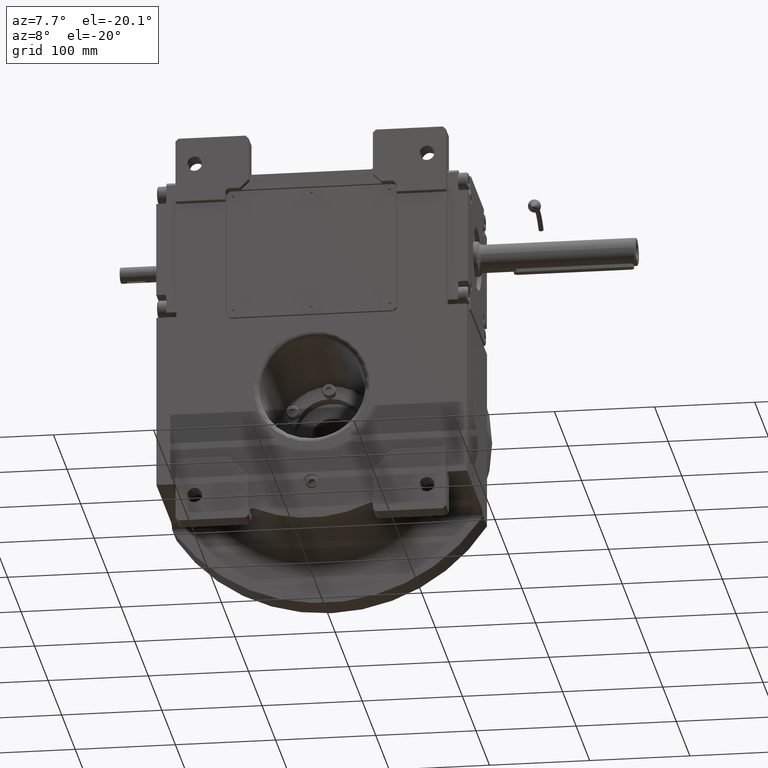
[diagram: clean part render]
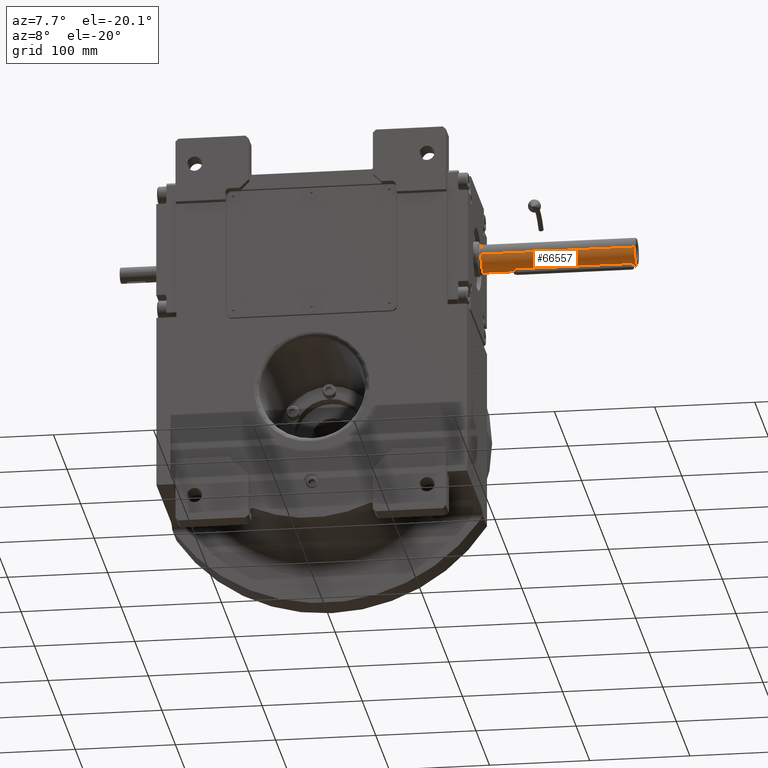
[diagram: same view with one face highlighted and labeled with its STEP entity id]
A machine part, auxiliary view. The second image highlights one B-rep face of the part: STEP entity #66557.
In plain terms, the highlighted cylindrical surface (edge-blend (fillet) strip) has radius 14 mm, axis along (-1, -0, -0).
Its self-contained STEP definition (entity closure, byte-faithful):
#1234 = CARTESIAN_POINT ( 'NONE',  ( 8.603422987298920077, -246.9996239757363128, 11.19503507964032174 ) ) ;
#1284 = CARTESIAN_POINT ( 'NONE',  ( 3.715224971185263403, -127.5175879213101808, 13.49778016092631283 ) ) ;
#2058 = CARTESIAN_POINT ( 'NONE',  ( 1.215281151927839254, -244.8115122222964999, 13.94716291165071986 ) ) ;
#2146 = CARTESIAN_POINT ( 'NONE',  ( -3.972403336761646475, -241.5374453021629222, 13.42733156200549516 ) ) ;
#2273 = CARTESIAN_POINT ( 'NONE',  ( 3.664371960193779643, -246.9996239757397518, 13.63525121404130758 ) ) ;
#2493 = CARTESIAN_POINT ( 'NONE',  ( -2.948454813095374050, -243.7034141103450793, 13.68622714788687666 ) ) ;
#2614 = CARTESIAN_POINT ( 'NONE',  ( -14.00000000000000000, -246.9999530112705202, 1.054711873393898713E-12 ) ) ;
#2831 = CARTESIAN_POINT ( 'NONE',  ( -1.912415641241238529, -244.5149780297163034, 13.86827360737135528 ) ) ;
#3017 = CARTESIAN_POINT ( 'NONE',  ( 1.541111588480336358, -125.3087964697210168, 13.91486945911322159 ) ) ;
#3387 = CARTESIAN_POINT ( 'NONE',  ( -1.907568120261910805, -125.4744880581609152, 13.87018799143613279 ) ) ;
#3669 = VERTEX_POINT ( 'NONE', #61534 ) ;
#3731 = CARTESIAN_POINT ( 'NONE',  ( -1.519842852450183690, -125.2999869902655377, 13.91721350779061339 ) ) ;
#3822 = CARTESIAN_POINT ( 'NONE',  ( 2.589743650408513176, -244.0495167641500416, 13.75819993299977817 ) ) ;
#4067 = LINE ( 'NONE', #42576, #45503 ) ;
#4069 = DIRECTION ( 'NONE',  ( 4.683861624749757595E-31, -1.000000000000000000, -9.367723249499515189E-31 ) ) ;
#4084 = CARTESIAN_POINT ( 'NONE',  ( 1.763503408464556443, -125.4092957846026337, 13.88809970821121809 ) ) ;
#4264 = CARTESIAN_POINT ( 'NONE',  ( -1.763503425090325649, -244.5907042071519868, 13.88809970842656405 ) ) ;
#4457 = CARTESIAN_POINT ( 'NONE',  ( -2.768664220749990523, -126.1127563541605525, 13.72356733609791313 ) ) ;
#6371 = CARTESIAN_POINT ( 'NONE',  ( 1.519844869232040541, -244.7000121806399306, 13.91721327980539158 ) ) ;
#6741 = CARTESIAN_POINT ( 'NONE',  ( 2.238870329827628236, -244.3172989451417152, 13.81917063108203614 ) ) ;
#6954 = CARTESIAN_POINT ( 'NONE',  ( 7.050476347792860921, -246.9996239757374781, 12.23268085098042235 ) ) ;
#7413 = CARTESIAN_POINT ( 'NONE',  ( 0.2494657583477977447, -244.9999999999999432, 14.00000001018641171 ) ) ;
#7684 = CARTESIAN_POINT ( 'NONE',  ( 3.999999999999901412, -128.9999999999999716, 13.41640786499872995 ) ) ;
#7858 = CARTESIAN_POINT ( 'NONE',  ( -3.695225241446180142, -242.5314428924414187, 13.50323915192450208 ) ) ;
#8122 = CARTESIAN_POINT ( 'NONE',  ( 3.469082816873210628, -242.9956272893865901, 13.56463250790648978 ) ) ;
#8363 = VERTEX_POINT ( 'NONE', #31013 ) ;
#8366 = CARTESIAN_POINT ( 'NONE',  ( -3.620494611220840486, -127.2987317090539250, 13.52381853104160214 ) ) ;
#8452 = CARTESIAN_POINT ( 'NONE',  ( 2.530380799311025442, -244.0988323061838230, 13.76907266886290238 ) ) ;
#8731 = CARTESIAN_POINT ( 'NONE',  ( 1.573481316374816918, -125.3224463499923758, 13.91123184192715989 ) ) ;
#8854 = CARTESIAN_POINT ( 'NONE',  ( -4.000000000000098588, -128.9999999999999716, 13.41640786499872995 ) ) ;
#9098 = CARTESIAN_POINT ( 'NONE',  ( -0.2494284053551258096, -124.9999999826649884, 14.00000380919818532 ) ) ;
#9261 = CARTESIAN_POINT ( 'NONE',  ( -1.541111647136484741, -244.6912035057888488, 13.91486945572806988 ) ) ;
#9440 = CARTESIAN_POINT ( 'NONE',  ( -3.692191464309671378, -127.4612572549592215, 13.50406829938647846 ) ) ;
#9788 = CARTESIAN_POINT ( 'NONE',  ( 1.715465017763553757, -125.3861692278131272, 13.89423485971970784 ) ) ;
#10463 = ORIENTED_EDGE ( 'NONE', *, *, #27332, .F. ) ;
#11290 = VERTEX_POINT ( 'NONE', #49658 ) ;
#12054 = CARTESIAN_POINT ( 'NONE',  ( 1.533113509807771724, -244.6945326199641499, 13.91575508887678048 ) ) ;
#12325 = CARTESIAN_POINT ( 'NONE',  ( 3.629667006749529801, -127.3106649799767069, 13.52114999156640174 ) ) ;
#12340 = EDGE_CURVE ( 'NONE', #70471, #11290, #39054, .T. ) ;
#12836 = CARTESIAN_POINT ( 'NONE',  ( -2.889904294231464998, -243.7659151843578229, 13.69860976702152477 ) ) ;
#13072 = ORIENTED_EDGE ( 'NONE', *, *, #62840, .T. ) ;
#13188 = CARTESIAN_POINT ( 'NONE',  ( -3.774799280518691624, -242.3259145773492378, 13.48156699920095036 ) ) ;
#13466 = CARTESIAN_POINT ( 'NONE',  ( 3.664420038106851685, -242.6040271613253481, 13.51170044012018323 ) ) ;
#13554 = CARTESIAN_POINT ( 'NONE',  ( -2.858120639122381235, -243.7987357821104979, 13.70524542977000237 ) ) ;
#13682 = CARTESIAN_POINT ( 'NONE',  ( -1.832546479736844258, -246.9996239757431340, 13.99962395681319371 ) ) ;
#13734 = CARTESIAN_POINT ( 'NONE',  ( -4.000000000000112799, -128.4580694482657748, 13.42129601379231651 ) ) ;
#13817 = CARTESIAN_POINT ( 'NONE',  ( 3.262688976214228376, -243.3287584929250045, 13.61660162732786361 ) ) ;
#13900 = CARTESIAN_POINT ( 'NONE',  ( -3.700274817866332722, -242.5192044031247462, 13.50186004722438327 ) ) ;
#14062 = CARTESIAN_POINT ( 'NONE',  ( -0.5056136941840660981, -125.0233970557849972, 13.99296076671847189 ) ) ;
#14249 = CARTESIAN_POINT ( 'NONE',  ( -2.349418900888812001, -244.2478117856025506, 13.80214462376505580 ) ) ;
#14428 = CARTESIAN_POINT ( 'NONE',  ( 0.4988576446940122811, -125.0000000346699380, 13.99999238160610204 ) ) ;
#14792 = CARTESIAN_POINT ( 'NONE',  ( -3.650274502842331792, -127.3641302586042343, 13.51560701084278016 ) ) ;
#15139 = CARTESIAN_POINT ( 'NONE',  ( 1.646050066962345682, -125.3542946572238321, 13.90272726330682040 ) ) ;
#15522 = EDGE_CURVE ( 'NONE', #27382, #24713, #28139, .T. ) ;
#15608 = AXIS2_PLACEMENT_3D ( 'NONE', #37371, #16976, #49109 ) ;
#15664 = CARTESIAN_POINT ( 'NONE',  ( -1.715465040708584521, -244.6138307611737730, 13.89423485946427661 ) ) ;
#16052 = ORIENTED_EDGE ( 'NONE', *, *, #54873, .F. ) ;
#16976 = DIRECTION ( 'NONE',  ( 4.683861624749757595E-31, -1.000000000000000000, -9.367723249499515189E-31 ) ) ;
#17400 = CARTESIAN_POINT ( 'NONE',  ( 6.314731158312008265E-11, -244.9999999999956231, 14.00000000000126832 ) ) ;
#17619 = DIRECTION ( 'NONE',  ( 4.683861624749757595E-31, -1.000000000000000000, -9.367723249499515189E-31 ) ) ;
#17665 = CARTESIAN_POINT ( 'NONE',  ( 3.704791842159812276, -127.4918130987178699, 13.50062679747256844 ) ) ;
#18326 = CARTESIAN_POINT ( 'NONE',  ( -3.664371940864810551, -246.9996239757442424, 13.63525121923107797 ) ) ;
#18345 = EDGE_CURVE ( 'NONE', #27382, #3669, #46659, .T. ) ;
#18880 = CARTESIAN_POINT ( 'NONE',  ( -4.000000000000112799, -241.2709031009677574, 13.41885106086311019 ) ) ;
#19018 = CARTESIAN_POINT ( 'NONE',  ( -7.050476330448685047, -246.9996239757464593, 12.23268086096652851 ) ) ;
#19425 = CARTESIAN_POINT ( 'NONE',  ( -3.526345677167521231, -127.1088562113611715, 13.54943428568206976 ) ) ;
#19595 = CARTESIAN_POINT ( 'NONE',  ( -3.331556968830593490, -243.2176095309814912, 13.59925978158145554 ) ) ;
#19757 = CARTESIAN_POINT ( 'NONE',  ( 3.537940345006858056, -127.1155282984431665, 13.54729066733074205 ) ) ;
#20035 = CARTESIAN_POINT ( 'NONE',  ( -14.00000000000000000, -246.9999530112705202, 1.054711873393898713E-12 ) ) ;
#20121 = CARTESIAN_POINT ( 'NONE',  ( -2.797024011805065324, -126.1401720605710750, 13.71784672418509921 ) ) ;
#20313 = CARTESIAN_POINT ( 'NONE',  ( -0.4989315166959487069, -244.9999999999999716, 13.99999997963478293 ) ) ;
#20501 = CARTESIAN_POINT ( 'NONE',  ( -1.706169286663492768, -125.3774263002088674, 13.89661606440622421 ) ) ;
#20839 = CARTESIAN_POINT ( 'NONE',  ( -3.692695903701001647, -127.4624653874514877, 13.50393022281754973 ) ) ;
#21874 = EDGE_CURVE ( 'NONE', #3669, #64501, #47113, .T. ) ;
#22991 = CARTESIAN_POINT ( 'NONE',  ( -4.000000000000098588, -128.9999999999999716, 13.41640786499872995 ) ) ;
#23106 = CARTESIAN_POINT ( 'NONE',  ( 2.354045663096103524, -244.2374100175207730, 13.80026897075344294 ) ) ;
#23318 = CARTESIAN_POINT ( 'NONE',  ( 13.99990596027515899, -246.9999060225405003, -3.748079069332277413E-07 ) ) ;
#23676 = CARTESIAN_POINT ( 'NONE',  ( -12.23268084597046546, -246.9996239757509784, 7.050476356457136440 ) ) ;
#24030 = CARTESIAN_POINT ( 'NONE',  ( -13.99962395290441286, -246.9996239757543890, 1.832546509503064636 ) ) ;
#24425 = B_SPLINE_CURVE_WITH_KNOTS ( 'NONE', 3,
 ( #17400, #7413, #39171, #29188, #34880, #2058, #33477, #67343, #38837, #50242, #6371, #60919, #12054, #33836, #55586, #6741, #23106, #8452, #3822, #69104, #46981, #40566, #68048, #47325, #13817, #8122, #68415, #57673, #58386, #62324, #13466, #40932, #68750, #35259, #24872, #63773, #25218, #63038, #29882 ),
 .UNSPECIFIED., .F., .F.,
 ( 4, 2, 2, 1, 1, 1, 1, 2, 2, 2, 2, 2, 2, 2, 2, 2, 2, 1, 1, 1, 2, 2, 4 ),
 ( 0.5000000000000000000, 0.5624999999998331335, 0.5937499999997496447, 0.6093749999997079003, 0.6171874999996880273, 0.6210937499996793676, 0.6230468749996749267, 0.6240234374996728173, 0.6249999999996705968, 0.6874999999996743716, 0.7187499999996763700, 0.7343749999996790345, 0.7421874999996787015, 0.7499999999996782574, 0.8124999999996616040, 0.8437499999996532773, 0.8593749999996491695, 0.8671874999996511679, 0.8710937499996520561, 0.8730468749996525002, 0.8740234374996528333, 0.8749999999996531663, 1.000000000000000000 ),
 .UNSPECIFIED. ) ;
#24598 = CARTESIAN_POINT ( 'NONE',  ( -2.976731782497456180, -243.6722236602618068, 13.68016873487748697 ) ) ;
#24713 = VERTEX_POINT ( 'NONE', #50388 ) ;
#24766 = DIRECTION ( 'NONE',  ( -4.683861624749757595E-31, 1.000000000000000000, 9.367723249499515189E-31 ) ) ;
#24784 = CARTESIAN_POINT ( 'NONE',  ( -1.215245819992124332, -125.1884764301633197, 13.94716670611019893 ) ) ;
#24872 = CARTESIAN_POINT ( 'NONE',  ( 3.692191433926296007, -242.5387428179394078, 13.50406830055838903 ) ) ;
#25084 = ORIENTED_EDGE ( 'NONE', *, *, #46933, .F. ) ;
#25136 = CARTESIAN_POINT ( 'NONE',  ( -2.708964200291217317, -126.0566701851063556, 13.73538801218286842 ) ) ;
#25218 = CARTESIAN_POINT ( 'NONE',  ( 3.888838587904637656, -242.0651397987388123, 13.45033173693825823 ) ) ;
#25288 = B_SPLINE_CURVE_WITH_KNOTS ( 'NONE', 3,
 ( #7684, #45137, #51218, #33747, #29795, #55502, #28414, #50169, #1284, #17665, #44790, #66552, #61192, #12325, #19757, #30138, #68331, #35840, #57230, #63680, #42251, #57939, #41532, #47594, #52967, #52282, #25835, #4084, #9788, #15139, #47230, #8731, #36904, #46889, #3017, #30499, #63302, #14428, #9098, #14062, #64028, #36211, #24784, #68660, #69009, #69376, #31560, #3731, #57582, #58644, #20501, #3387, #46550, #53325, #31201, #25473, #30859, #25136, #4457, #20121, #36569, #52625, #51911, #19425, #41896, #8366, #14792, #26206, #47955, #58297, #69722, #9440, #20839, #42595, #13734, #35508 ),
 .UNSPECIFIED., .F., .F.,
 ( 4, 2, 2, 1, 1, 1, 1, 2, 2, 2, 2, 2, 2, 2, 2, 2, 2, 1, 1, 1, 2, 2, 2, 2, 2, 1, 1, 1, 1, 2, 2, 2, 2, 2, 2, 2, 2, 2, 2, 1, 1, 1, 2, 2, 4 ),
 ( 0.000000000000000000, 0.06249999999990940580, 0.09374999999986088906, 0.1093749999998366168, 0.1171874999998245015, 0.1210937499998216010, 0.1230468749998232386, 0.1240234374998209488, 0.1249999999998186589, 0.1874999999998326339, 0.2187499999998396560, 0.2343749999998431810, 0.2421874999998449574, 0.2499999999998467337, 0.3124999999998505085, 0.3437499999998524514, 0.3593749999998551159, 0.3671874999998547273, 0.3710937499998527844, 0.3730468749998500089, 0.3740234374998468447, 0.3749999999998437361, 0.4999999999996262989, 0.5624999999995176081, 0.5937499999994626521, 0.6093749999994360067, 0.6171874999994226840, 0.6210937499994160227, 0.6230468749994125810, 0.6240234374994121369, 0.6249999999994115818, 0.6874999999995441424, 0.7187499999996086464, 0.7343749999996391775, 0.7421874999996544986, 0.7499999999996698197, 0.8124999999997886135, 0.8437499999998480105, 0.8593749999998813172, 0.8671874999999019673, 0.8710937499999166223, 0.8730468749999239497, 0.8740234374999231726, 0.8749999999999222844, 1.000000000000000000 ),
 .UNSPECIFIED. ) ;
#25473 = CARTESIAN_POINT ( 'NONE',  ( -2.589743718030510955, -125.9504832927665632, 13.75819991878694282 ) ) ;
#25835 = CARTESIAN_POINT ( 'NONE',  ( 1.912415638689172637, -125.4850219685677075, 13.86827360633450645 ) ) ;
#26025 = CARTESIAN_POINT ( 'NONE',  ( -1.554526258208015044, -244.6855810629742791, 13.91337212608457286 ) ) ;
#26206 = CARTESIAN_POINT ( 'NONE',  ( -3.664420039551556929, -127.3959728414354231, 13.51170044899927625 ) ) ;
#26916 = EDGE_LOOP ( 'NONE', ( #33426, #52611, #33949, #58508 ) ) ;
#27332 = EDGE_CURVE ( 'NONE', #11290, #30101, #51953, .T. ) ;
#27382 = VERTEX_POINT ( 'NONE', #41716 ) ;
#27592 = DIRECTION ( 'NONE',  ( 4.683861624749757595E-31, -1.000000000000000000, -9.367723249499515189E-31 ) ) ;
#28139 = CIRCLE ( 'NONE', #15608, 14.00000000000000000 ) ;
#28414 = CARTESIAN_POINT ( 'NONE',  ( 3.774799203429807459, -127.6740852069636389, 13.48156702297509746 ) ) ;
#29188 = CARTESIAN_POINT ( 'NONE',  ( 0.8924870594014171488, -244.9013742304421726, 13.97182022939264989 ) ) ;
#29778 = FACE_BOUND ( 'NONE', #66463, .T. ) ;
#29795 = CARTESIAN_POINT ( 'NONE',  ( 3.862051633619048019, -127.9506141482096808, 13.45787654297106251 ) ) ;
#29882 = CARTESIAN_POINT ( 'NONE',  ( 3.999999999999901412, -240.9999999999999716, 13.41640786499978510 ) ) ;
#29964 = CARTESIAN_POINT ( 'NONE',  ( -3.735662116040350700, -242.4305957375750040, 13.49221068623211472 ) ) ;
#30101 = VERTEX_POINT ( 'NONE', #42188 ) ;
#30138 = CARTESIAN_POINT ( 'NONE',  ( 3.331557028424146250, -126.7823905582685597, 13.59925976411142656 ) ) ;
#30499 = CARTESIAN_POINT ( 'NONE',  ( 1.539756636485125396, -125.3082296822549466, 13.91502037222345400 ) ) ;
#30859 = CARTESIAN_POINT ( 'NONE',  ( -2.679118352293320626, -126.0294939786966495, 13.74117985800165620 ) ) ;
#31013 = CARTESIAN_POINT ( 'NONE',  ( 3.999999999999901412, -128.9999999999999716, 13.41640786499872995 ) ) ;
#31201 = CARTESIAN_POINT ( 'NONE',  ( -2.530380855019358943, -125.9011677389729158, 13.76907265708236849 ) ) ;
#31560 = CARTESIAN_POINT ( 'NONE',  ( -1.507886900491629323, -125.2950834143426988, 13.91851913011898034 ) ) ;
#33426 = ORIENTED_EDGE ( 'NONE', *, *, #45385, .T. ) ;
#33477 = CARTESIAN_POINT ( 'NONE',  ( 1.311871597884670226, -244.7798332316535550, 13.93857688075181933 ) ) ;
#33688 = ORIENTED_EDGE ( 'NONE', *, *, #12340, .F. ) ;
#33747 = CARTESIAN_POINT ( 'NONE',  ( 3.894226584558374782, -128.0768487448502526, 13.44910831709256271 ) ) ;
#33836 = CARTESIAN_POINT ( 'NONE',  ( 1.706169253160661592, -244.6225737198328147, 13.89661606433918273 ) ) ;
#33949 = ORIENTED_EDGE ( 'NONE', *, *, #18345, .F. ) ;
#34063 = CARTESIAN_POINT ( 'NONE',  ( 11.19503508573852280, -246.9996239757340390, 8.603422979367115531 ) ) ;
#34403 = CARTESIAN_POINT ( 'NONE',  ( 1.832546499581417798, -246.9996239757408603, 13.99962395421780315 ) ) ;
#34744 = CARTESIAN_POINT ( 'NONE',  ( 12.23268085598020782, -246.9996239757329590, 7.050476339126585223 ) ) ;
#34880 = CARTESIAN_POINT ( 'NONE',  ( 1.021823203302465899, -244.8696268730951999, 13.96301404503038235 ) ) ;
#34964 = CARTESIAN_POINT ( 'NONE',  ( -3.704791870429570366, -242.5081868319050216, 13.50062679324182824 ) ) ;
#35129 = VECTOR ( 'NONE', #4069, 1000.000000000000000 ) ;
#35259 = CARTESIAN_POINT ( 'NONE',  ( 3.690146155418983831, -242.5436412783303126, 13.50462809417565602 ) ) ;
#35461 = CARTESIAN_POINT ( 'NONE',  ( 13.99962395552685734, -246.9996239757295484, 1.832546489662049360 ) ) ;
#35508 = CARTESIAN_POINT ( 'NONE',  ( -4.000000000000098588, -128.9999999999999716, 13.41640786499872995 ) ) ;
#35613 = CARTESIAN_POINT ( 'NONE',  ( 14.00000000000000000, -94.00000000000000000, 0.000000000000000000 ) ) ;
#35667 = CARTESIAN_POINT ( 'NONE',  ( -3.629666982754394589, -242.6893350832541500, 13.52115000616329255 ) ) ;
#35818 = DIRECTION ( 'NONE',  ( 1.000000000000000000, 0.000000000000000000, -8.437694987151189707E-15 ) ) ;
#35840 = CARTESIAN_POINT ( 'NONE',  ( 3.109462392088248706, -126.4826279810103671, 13.65107273351811834 ) ) ;
#36031 = CARTESIAN_POINT ( 'NONE',  ( -3.862051731989133430, -242.0493854967475045, 13.45787650116805700 ) ) ;
#36211 = CARTESIAN_POINT ( 'NONE',  ( -1.021773877389995144, -125.1303597778091472, 13.96301926548560957 ) ) ;
#36569 = CARTESIAN_POINT ( 'NONE',  ( -3.078718935014460811, -126.4218463336552816, 13.65974685659606536 ) ) ;
#36904 = CARTESIAN_POINT ( 'NONE',  ( 1.554526203033438803, -125.3144189137499467, 13.91337212914797483 ) ) ;
#37371 = CARTESIAN_POINT ( 'NONE',  ( 8.881784197001834108E-16, -94.00000000000000000, 0.000000000000000000 ) ) ;
#37952 = CARTESIAN_POINT ( 'NONE',  ( -14.00000000000000000, -94.00000000000000000, 0.000000000000000000 ) ) ;
#38245 = VERTEX_POINT ( 'NONE', #64403 ) ;
#38837 = CARTESIAN_POINT ( 'NONE',  ( 1.479973218994530715, -244.7162073327111500, 13.92152865503849846 ) ) ;
#39054 = LINE ( 'NONE', #22991, #49542 ) ;
#39171 = CARTESIAN_POINT ( 'NONE',  ( 0.5056692237086011232, -244.9765958789931517, 13.99295506880691953 ) ) ;
#40117 = FACE_OUTER_BOUND ( 'NONE', #26916, .T. ) ;
#40291 = CARTESIAN_POINT ( 'NONE',  ( -3.894226675500763069, -241.9231508709316927, 13.44910827163760025 ) ) ;
#40566 = CARTESIAN_POINT ( 'NONE',  ( 2.768664111953753615, -243.8872437500079684, 13.72356735900376101 ) ) ;
#40644 = CARTESIAN_POINT ( 'NONE',  ( -3.715225008123159700, -242.4824119863760927, 13.49778015359703254 ) ) ;
#40932 = CARTESIAN_POINT ( 'NONE',  ( 3.679707551038880808, -242.5684255784336187, 13.50749138681555905 ) ) ;
#41356 = CARTESIAN_POINT ( 'NONE',  ( -2.589949672919077628, -244.0668871687230137, 13.76055624430963320 ) ) ;
#41532 = CARTESIAN_POINT ( 'NONE',  ( 2.858120559230161728, -126.2012641364189420, 13.70524544666566591 ) ) ;
#41716 = CARTESIAN_POINT ( 'NONE',  ( 14.00000000000000000, -94.00000000000000000, -7.093409193359434539E-09 ) ) ;
#41896 = CARTESIAN_POINT ( 'NONE',  ( -3.598657609572556648, -127.2528457208614014, 13.52982407318990177 ) ) ;
#42188 = CARTESIAN_POINT ( 'NONE',  ( 6.314731158312008265E-11, -244.9999999999956231, 14.00000000000126832 ) ) ;
#42251 = CARTESIAN_POINT ( 'NONE',  ( 2.948454783981488081, -126.2965858576641267, 13.68622715416114488 ) ) ;
#42576 = CARTESIAN_POINT ( 'NONE',  ( 3.999999999999901412, -128.9999999999999716, 13.41640786499872995 ) ) ;
#42595 = CARTESIAN_POINT ( 'NONE',  ( -3.888838911673897503, -127.9348610092385599, 13.45033163542342614 ) ) ;
#42768 = CARTESIAN_POINT ( 'NONE',  ( -1.546468653749683897, -244.6889623382542140, 13.91427274363308797 ) ) ;
#44790 = CARTESIAN_POINT ( 'NONE',  ( 3.700274793501586057, -127.4807955375408852, 13.50186005009432932 ) ) ;
#45080 = CARTESIAN_POINT ( 'NONE',  ( -11.19503507353069693, -246.9996239757498131, 8.603422995226246428 ) ) ;
#45137 = CARTESIAN_POINT ( 'NONE',  ( 3.999999999999885425, -128.7290966469632849, 13.41885109093698070 ) ) ;
#45385 = EDGE_CURVE ( 'NONE', #24713, #64501, #65072, .T. ) ;
#45503 = VECTOR ( 'NONE', #27592, 1000.000000000000000 ) ;
#45744 = AXIS2_PLACEMENT_3D ( 'NONE', #56880, #24766, #35818 ) ;
#46358 = CARTESIAN_POINT ( 'NONE',  ( -3.697253322759758820, -242.5265430270879961, 13.50268516444904954 ) ) ;
#46550 = CARTESIAN_POINT ( 'NONE',  ( -2.238870341872193581, -125.6827010628136208, 13.81917062850659761 ) ) ;
#46659 = LINE ( 'NONE', #35613, #56318 ) ;
#46872 = CYLINDRICAL_SURFACE ( 'NONE', #45744, 14.00000000000000000 ) ;
#46889 = CARTESIAN_POINT ( 'NONE',  ( 1.546468596494232628, -125.3110376377429844, 13.91427274688861360 ) ) ;
#46933 = EDGE_CURVE ( 'NONE', #8363, #70471, #25288, .T. ) ;
#46981 = CARTESIAN_POINT ( 'NONE',  ( 2.708964105893986840, -243.9433299016180285, 13.73538803199942926 ) ) ;
#47055 = CARTESIAN_POINT ( 'NONE',  ( -2.018124066949574136, -244.4560364425216221, 13.85316200941182707 ) ) ;
#47113 = B_SPLINE_CURVE_WITH_KNOTS ( 'NONE', 3,
 ( #23318, #35461, #67546, #34744, #34063, #1234, #6954, #2273, #34403, #13682, #18326, #19018, #56496, #45080, #23676, #57181, #24030, #2614 ),
 .UNSPECIFIED., .F., .F.,
 ( 4, 2, 2, 2, 2, 2, 2, 2, 4 ),
 ( 0.000000000000000000, 0.1250000000000000000, 0.2500000000000000000, 0.3750000000000000000, 0.5000000000000000000, 0.6250000000000000000, 0.7500000000000000000, 0.8750000000000000000, 1.000000000000000000 ),
 .UNSPECIFIED. ) ;
#47230 = CARTESIAN_POINT ( 'NONE',  ( 1.612002516263207674, -125.3390614506708971, 13.90679588418147539 ) ) ;
#47325 = CARTESIAN_POINT ( 'NONE',  ( 3.078718985593155821, -243.5781536377054977, 13.65974684795112282 ) ) ;
#47594 = CARTESIAN_POINT ( 'NONE',  ( 2.589949635211516554, -125.9331128062472800, 13.76055625180296538 ) ) ;
#47782 = CARTESIAN_POINT ( 'NONE',  ( -1.612002557858052132, -244.6609385309534161, 13.90679588234984720 ) ) ;
#47955 = CARTESIAN_POINT ( 'NONE',  ( -3.679707567831784765, -127.4315744608209542, 13.50749139046303426 ) ) ;
#48845 = CARTESIAN_POINT ( 'NONE',  ( -1.539757233461641395, -244.6917700694381494, 13.91502030929710543 ) ) ;
#49109 = DIRECTION ( 'NONE',  ( 1.000000000000000000, 0.000000000000000000, -8.437694987151189707E-15 ) ) ;
#49542 = VECTOR ( 'NONE', #17619, 1000.000000000000000 ) ;
#49658 = CARTESIAN_POINT ( 'NONE',  ( -4.000000000000098588, -240.9999999999999716, 13.41640786499978510 ) ) ;
#50169 = CARTESIAN_POINT ( 'NONE',  ( 3.735662063503340846, -127.5694041262471501, 13.49221069945184581 ) ) ;
#50242 = CARTESIAN_POINT ( 'NONE',  ( 1.507890496254679968, -244.7049151176002226, 13.91851872811625057 ) ) ;
#50388 = CARTESIAN_POINT ( 'NONE',  ( -14.00000000000000000, -94.00000000000000000, 7.093409193359434539E-09 ) ) ;
#51218 = CARTESIAN_POINT ( 'NONE',  ( 3.972403285935012018, -128.4625543181324474, 13.42733160720270824 ) ) ;
#51721 = CARTESIAN_POINT ( 'NONE',  ( -3.537940287264060402, -242.8844718086525631, 13.54729068850600804 ) ) ;
#51911 = CARTESIAN_POINT ( 'NONE',  ( -3.469082716070158057, -127.0043725358736282, 13.56463254207320368 ) ) ;
#51953 = B_SPLINE_CURVE_WITH_KNOTS ( 'NONE', 3,
 ( #68488, #18880, #2146, #40291, #36031, #62783, #13188, #29964, #40644, #34964, #13900, #46358, #7858, #35667, #51721, #19595, #61716, #57761, #63118, #24598, #2493, #12836, #13554, #41356, #14249, #47055, #2831, #4264, #15664, #53141, #47782, #52789, #26025, #42768, #9261, #48845, #70248, #20313, #69544 ),
 .UNSPECIFIED., .F., .F.,
 ( 4, 2, 2, 1, 1, 1, 1, 2, 2, 2, 2, 2, 2, 2, 2, 2, 2, 1, 1, 1, 2, 2, 4 ),
 ( 0.000000000000000000, 0.06249999999990764332, 0.09374999999986147192, 0.1093749999998383654, 0.1171874999998236411, 0.1210937499998194222, 0.1230468749998173544, 0.1240234374998194639, 0.1249999999998215872, 0.1874999999998585298, 0.2187499999998798184, 0.2343749999998926414, 0.2421874999998971656, 0.2499999999999016898, 0.3124999999999482081, 0.3437499999999731881, 0.3593749999999856226, 0.3671874999999918954, 0.3710937499999932832, 0.3730468749999940048, 0.3740234374999943379, 0.3749999999999946709, 0.5000000000000000000 ),
 .UNSPECIFIED. ) ;
#52282 = CARTESIAN_POINT ( 'NONE',  ( 2.018124067231296337, -125.5439635577728694, 13.85316200861505465 ) ) ;
#52611 = ORIENTED_EDGE ( 'NONE', *, *, #21874, .F. ) ;
#52625 = CARTESIAN_POINT ( 'NONE',  ( -3.262688871091263820, -126.6712413614753387, 13.61660165543566947 ) ) ;
#52789 = CARTESIAN_POINT ( 'NONE',  ( -1.573481366835119744, -244.6775536284017960, 13.91123183929588158 ) ) ;
#52967 = CARTESIAN_POINT ( 'NONE',  ( 2.349418892589809627, -125.7521882089468193, 13.80214462605175640 ) ) ;
#53141 = CARTESIAN_POINT ( 'NONE',  ( -1.646050101918895558, -244.6457053269631388, 13.90272726204982767 ) ) ;
#53325 = CARTESIAN_POINT ( 'NONE',  ( -2.354045688338684439, -125.7625899995622518, 13.80026896528434399 ) ) ;
#54873 = EDGE_CURVE ( 'NONE', #30101, #38245, #24425, .T. ) ;
#55502 = CARTESIAN_POINT ( 'NONE',  ( 3.805297939099714366, -127.7655483134799397, 13.47329286566161777 ) ) ;
#55586 = CARTESIAN_POINT ( 'NONE',  ( 1.907568118896758147, -244.5255119419250320, 13.87018798927254615 ) ) ;
#56318 = VECTOR ( 'NONE', #57337, 1000.000000000000000 ) ;
#56496 = CARTESIAN_POINT ( 'NONE',  ( -8.603422971423162480, -246.9996239757475962, 11.19503509182650269 ) ) ;
#56880 = CARTESIAN_POINT ( 'NONE',  ( 4.391120273202897745E-29, -91.00000000000000000, 0.000000000000000000 ) ) ;
#57181 = CARTESIAN_POINT ( 'NONE',  ( -13.63525121142994223, -246.9996239757532521, 3.664371969855413802 ) ) ;
#57230 = CARTESIAN_POINT ( 'NONE',  ( 3.058678275992036788, -126.4209822044300466, 13.66239218363451968 ) ) ;
#57337 = DIRECTION ( 'NONE',  ( 4.683861624749757595E-31, -1.000000000000000000, -9.367723249499515189E-31 ) ) ;
#57582 = CARTESIAN_POINT ( 'NONE',  ( -1.527811179619996462, -125.3032701521782428, 13.91633965205948620 ) ) ;
#57673 = CARTESIAN_POINT ( 'NONE',  ( 3.598657658325334463, -242.7471541780051609, 13.52982404939769090 ) ) ;
#57761 = CARTESIAN_POINT ( 'NONE',  ( -3.109462371604429620, -243.5173720437355485, 13.65107273885191397 ) ) ;
#57939 = CARTESIAN_POINT ( 'NONE',  ( 2.889904243651363114, -126.2340847625621478, 13.69860977787206124 ) ) ;
#58297 = CARTESIAN_POINT ( 'NONE',  ( -3.687057848920291647, -127.4489827684759433, 13.50547401043186824 ) ) ;
#58386 = CARTESIAN_POINT ( 'NONE',  ( 3.620494645788239652, -242.7012682163460511, 13.52381851105944932 ) ) ;
#58508 = ORIENTED_EDGE ( 'NONE', *, *, #15522, .T. ) ;
#58644 = CARTESIAN_POINT ( 'NONE',  ( -1.533113623981153584, -125.3054674274151097, 13.91575508147651163 ) ) ;
#60919 = CARTESIAN_POINT ( 'NONE',  ( 1.527812136767230378, -244.6967294515777382, 13.91633954101372694 ) ) ;
#61192 = CARTESIAN_POINT ( 'NONE',  ( 3.695225221765825019, -127.4685570600754829, 13.50323915319867218 ) ) ;
#61534 = CARTESIAN_POINT ( 'NONE',  ( 13.99990596027515899, -246.9999060225405003, -3.748079069332277413E-07 ) ) ;
#61716 = CARTESIAN_POINT ( 'NONE',  ( -3.251205805608605282, -243.3352374178218440, 13.61870915753349820 ) ) ;
#62324 = CARTESIAN_POINT ( 'NONE',  ( 3.650274513793668074, -242.6358697166890011, 13.51560699802167420 ) ) ;
#62783 = CARTESIAN_POINT ( 'NONE',  ( -3.805298026890844731, -242.2344514173823029, 13.47329283494337560 ) ) ;
#62840 = EDGE_CURVE ( 'NONE', #8363, #38245, #4067, .T. ) ;
#63038 = CARTESIAN_POINT ( 'NONE',  ( 3.999999999999885425, -241.5419313936870651, 13.42129611463889560 ) ) ;
#63118 = CARTESIAN_POINT ( 'NONE',  ( -3.058678269166615227, -243.5790178028273942, 13.66239218552311030 ) ) ;
#63302 = CARTESIAN_POINT ( 'NONE',  ( 1.026345449418677891, -125.0947462915104609, 13.97181258489860767 ) ) ;
#63680 = CARTESIAN_POINT ( 'NONE',  ( 2.976731763086938543, -126.3277763179138304, 13.68016873900500485 ) ) ;
#63773 = CARTESIAN_POINT ( 'NONE',  ( 3.692695873288281749, -242.5375346855743146, 13.50393022404602483 ) ) ;
#64028 = CARTESIAN_POINT ( 'NONE',  ( -0.8924326772363111449, -125.0986133282481774, 13.97182592548327840 ) ) ;
#64403 = CARTESIAN_POINT ( 'NONE',  ( 3.999999999999901412, -240.9999999999999716, 13.41640786499978510 ) ) ;
#64501 = VERTEX_POINT ( 'NONE', #20035 ) ;
#65072 = LINE ( 'NONE', #37952, #35129 ) ;
#66463 = EDGE_LOOP ( 'NONE', ( #13072, #16052, #10463, #33688, #25084 ) ) ;
#66552 = CARTESIAN_POINT ( 'NONE',  ( 3.697253301041048434, -127.4734569203196060, 13.50268516640450223 ) ) ;
#66557 = ADVANCED_FACE ( 'NONE', ( #40117, #29778 ), #46872, .T. ) ;
#67343 = CARTESIAN_POINT ( 'NONE',  ( 1.424048174875856221, -244.7382009064090767, 13.92740403233724678 ) ) ;
#67546 = CARTESIAN_POINT ( 'NONE',  ( 13.63525121664605955, -246.9996239757307137, 3.664371950533531930 ) ) ;
#68048 = CARTESIAN_POINT ( 'NONE',  ( 2.797023866087708921, -243.8598280823933067, 13.71784675478742876 ) ) ;
#68331 = CARTESIAN_POINT ( 'NONE',  ( 3.251205857325873083, -126.6647626517835619, 13.61870914356068063 ) ) ;
#68415 = CARTESIAN_POINT ( 'NONE',  ( 3.526345762143934248, -242.8911436275411688, 13.54943425335162033 ) ) ;
#68488 = CARTESIAN_POINT ( 'NONE',  ( -4.000000000000098588, -240.9999999999999716, 13.41640786499978510 ) ) ;
#68660 = CARTESIAN_POINT ( 'NONE',  ( -1.311844858549617410, -125.2201572623269072, 13.93857978407777054 ) ) ;
#68750 = CARTESIAN_POINT ( 'NONE',  ( 3.687057824246640081, -242.5510172901405781, 13.50547400955835720 ) ) ;
#69009 = CARTESIAN_POINT ( 'NONE',  ( -1.424034047317848106, -125.2617936457660051, 13.92740558426999264 ) ) ;
#69104 = CARTESIAN_POINT ( 'NONE',  ( 2.679118264834569718, -243.9705061000518924, 13.74117987635569804 ) ) ;
#69376 = CARTESIAN_POINT ( 'NONE',  ( -1.479966012776424700, -125.2837897796879645, 13.92152945334028580 ) ) ;
#69544 = CARTESIAN_POINT ( 'NONE',  ( 6.314731158312008265E-11, -244.9999999999956231, 14.00000000000126832 ) ) ;
#69722 = CARTESIAN_POINT ( 'NONE',  ( -3.690146183512867051, -127.4563587888235503, 13.50462809382643492 ) ) ;
#70248 = CARTESIAN_POINT ( 'NONE',  ( -1.026276786361375759, -244.9052822692479481, 13.97182018576826401 ) ) ;
#70471 = VERTEX_POINT ( 'NONE', #8854 ) ;